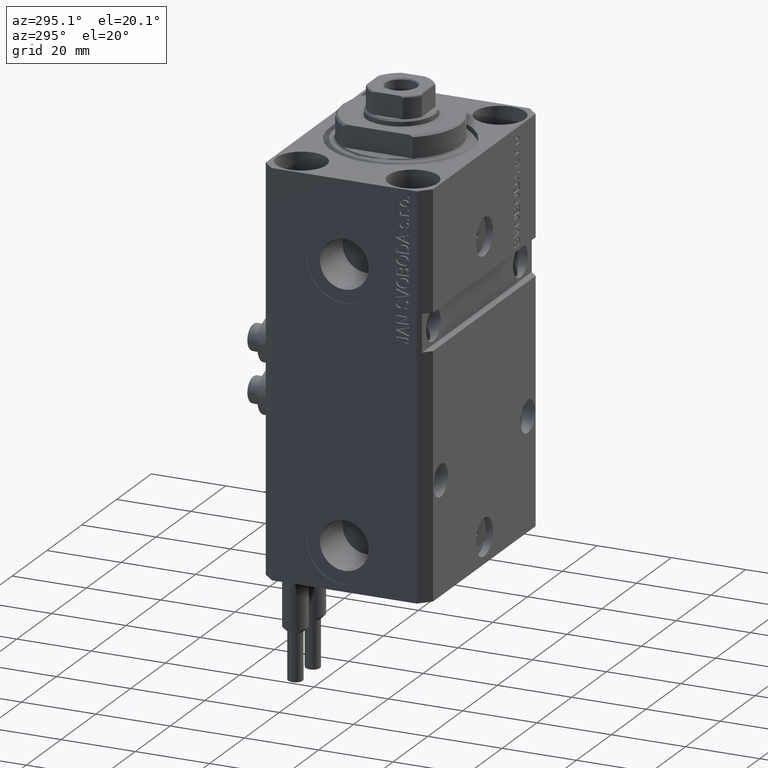
[diagram: clean part render]
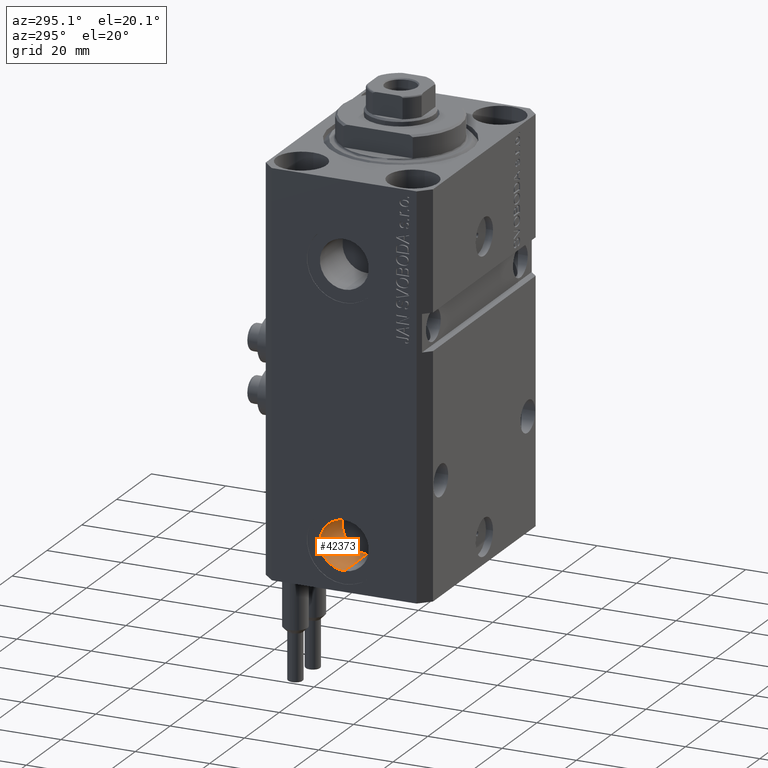
[diagram: same view with one face highlighted and labeled with its STEP entity id]
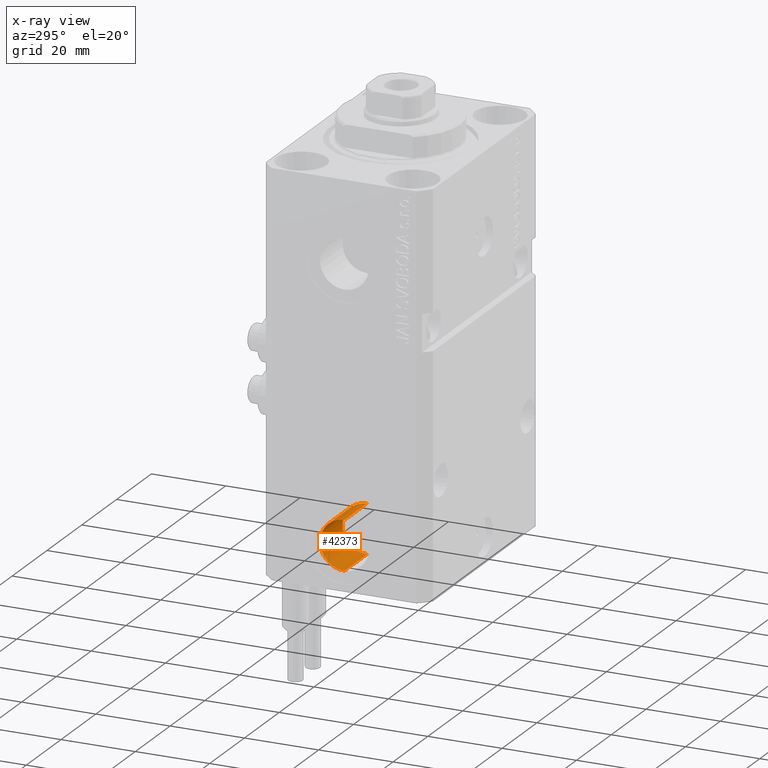
[diagram: x-ray of the same camera — body ghosted, the highlighted face saturated]
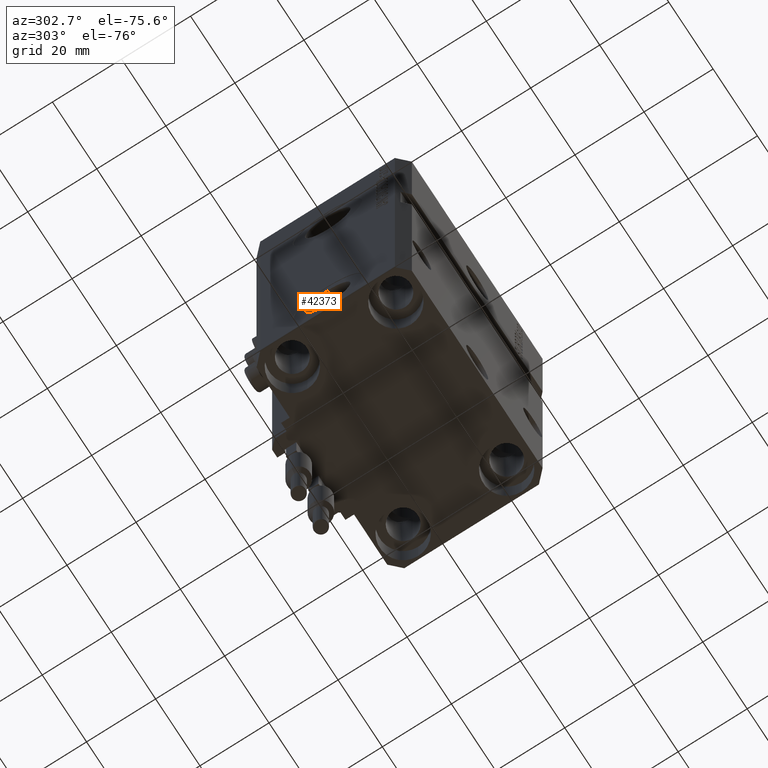
[diagram: same view with one face highlighted and labeled with its STEP entity id]
A machine part, auxiliary view. The second image highlights one B-rep face of the part: STEP entity #42373.
The next image is the same camera in x-ray: the body ghosted, the highlighted face saturated — about 0% of this face is hidden behind the body in this view.
A second angle (auxiliary view) of the same face is appended — the face is thin or edge-on in the first view.
In plain terms, the highlighted cylindrical surface (edge-blend (fillet) strip) has radius 6.58 mm, axis along (-1, -0, -0).
Its self-contained STEP definition (entity closure, byte-faithful):
#1805 = CIRCLE ( 'NONE', #43349, 6.580000000000002736 ) ;
#3097 = VERTEX_POINT ( 'NONE', #24959 ) ;
#3980 = LINE ( 'NONE', #11802, #16641 ) ;
#4178 = AXIS2_PLACEMENT_3D ( 'NONE', #33908, #30219, #45942 ) ;
#4408 = VERTEX_POINT ( 'NONE', #32057 ) ;
#6679 = DIRECTION ( 'NONE',  ( -1.000000000000000000, 0.000000000000000000, 0.000000000000000000 ) ) ;
#6916 = DIRECTION ( 'NONE',  ( 0.000000000000000000, 0.000000000000000000, 1.000000000000000000 ) ) ;
#7335 = CARTESIAN_POINT ( 'NONE',  ( -19.39999999999650271, -1.082832699806089739E-14, -101.5799999999999983 ) ) ;
#7409 = CARTESIAN_POINT ( 'NONE',  ( -32.39999999999650271, -1.163414459189985643E-14, -95.00000000000000000 ) ) ;
#7745 = VERTEX_POINT ( 'NONE', #7335 ) ;
#11802 = CARTESIAN_POINT ( 'NONE',  ( -19.39999999999650271, -1.082832699806089739E-14, -101.5799999999999983 ) ) ;
#12856 = LINE ( 'NONE', #46505, #23768 ) ;
#16641 = VECTOR ( 'NONE', #25803, 1000.000000000000000 ) ;
#16781 = DIRECTION ( 'NONE',  ( -1.000000000000000000, -0.000000000000000000, -0.000000000000000000 ) ) ;
#17807 = DIRECTION ( 'NONE',  ( 0.000000000000000000, 0.000000000000000000, 1.000000000000000000 ) ) ;
#18938 = CYLINDRICAL_SURFACE ( 'NONE', #4178, 6.580000000000002736 ) ;
#22210 = CARTESIAN_POINT ( 'NONE',  ( -19.39999999999650271, -1.163414459189985643E-14, -95.00000000000000000 ) ) ;
#22682 = DIRECTION ( 'NONE',  ( -1.000000000000000000, 0.000000000000000000, 0.000000000000000000 ) ) ;
#23768 = VECTOR ( 'NONE', #16781, 1000.000000000000000 ) ;
#24959 = CARTESIAN_POINT ( 'NONE',  ( -19.39999999999650271, -1.163414459189985643E-14, -88.42000000000000171 ) ) ;
#25107 = ORIENTED_EDGE ( 'NONE', *, *, #41335, .F. ) ;
#25803 = DIRECTION ( 'NONE',  ( -1.000000000000000000, -0.000000000000000000, -0.000000000000000000 ) ) ;
#26771 = EDGE_LOOP ( 'NONE', ( #25107, #33891, #35419, #34116 ) ) ;
#28915 = VERTEX_POINT ( 'NONE', #31803 ) ;
#30219 = DIRECTION ( 'NONE',  ( -1.000000000000000000, -0.000000000000000000, -0.000000000000000000 ) ) ;
#31803 = CARTESIAN_POINT ( 'NONE',  ( -32.39999999999650271, -1.163414459189985643E-14, -88.42000000000000171 ) ) ;
#32057 = CARTESIAN_POINT ( 'NONE',  ( -32.39999999999650271, -1.082832699806089739E-14, -101.5799999999999983 ) ) ;
#32685 = EDGE_CURVE ( 'NONE', #3097, #7745, #43814, .T. ) ;
#33891 = ORIENTED_EDGE ( 'NONE', *, *, #32685, .F. ) ;
#33908 = CARTESIAN_POINT ( 'NONE',  ( -19.39999999999650271, -1.163414459189985643E-14, -95.00000000000000000 ) ) ;
#34116 = ORIENTED_EDGE ( 'NONE', *, *, #44516, .T. ) ;
#35419 = ORIENTED_EDGE ( 'NONE', *, *, #46376, .T. ) ;
#37607 = FACE_OUTER_BOUND ( 'NONE', #26771, .T. ) ;
#41335 = EDGE_CURVE ( 'NONE', #7745, #4408, #3980, .T. ) ;
#42373 = ADVANCED_FACE ( 'NONE', ( #37607 ), #18938, .F. ) ;
#43349 = AXIS2_PLACEMENT_3D ( 'NONE', #7409, #6679, #6916 ) ;
#43814 = CIRCLE ( 'NONE', #46966, 6.580000000000002736 ) ;
#44516 = EDGE_CURVE ( 'NONE', #28915, #4408, #1805, .T. ) ;
#45942 = DIRECTION ( 'NONE',  ( 0.000000000000000000, 0.000000000000000000, 1.000000000000000000 ) ) ;
#46376 = EDGE_CURVE ( 'NONE', #3097, #28915, #12856, .T. ) ;
#46505 = CARTESIAN_POINT ( 'NONE',  ( -19.39999999999650271, -1.163414459189985643E-14, -88.42000000000000171 ) ) ;
#46966 = AXIS2_PLACEMENT_3D ( 'NONE', #22210, #22682, #17807 ) ;